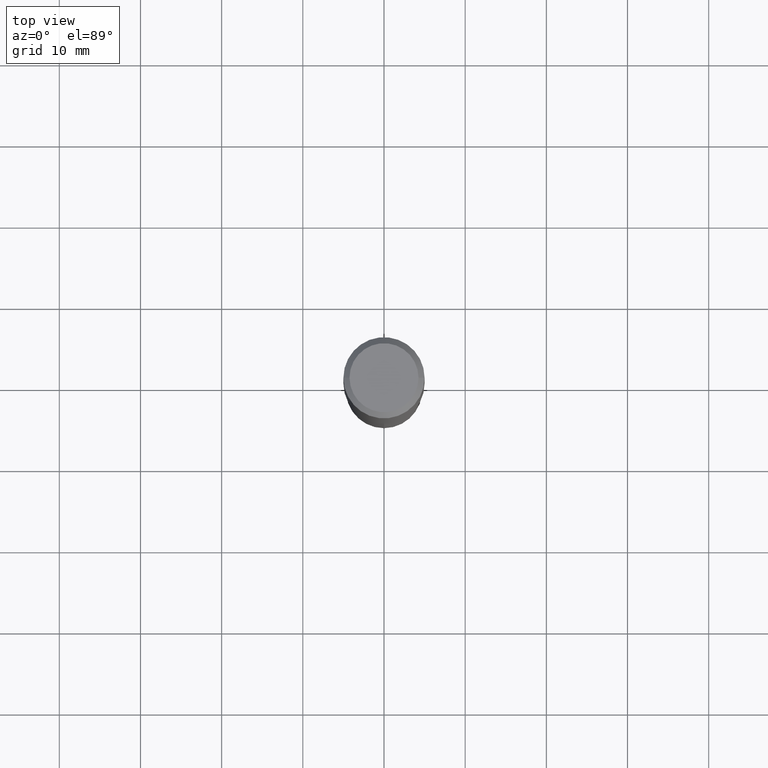
[diagram: clean part render]
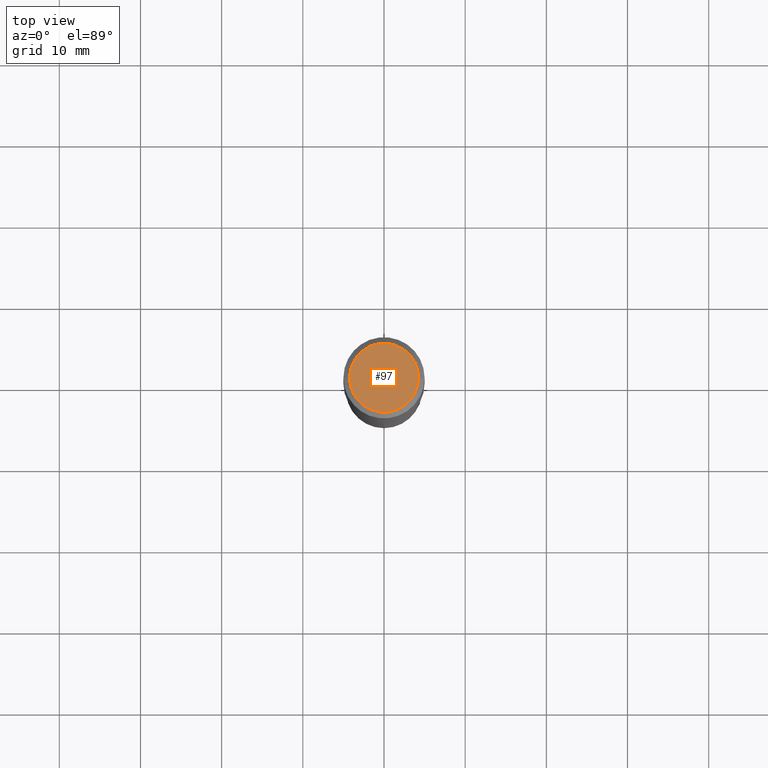
[diagram: same view with one face highlighted and labeled with its STEP entity id]
A machine part, top view. The second image highlights one B-rep face of the part: STEP entity #97.
In plain terms, the highlighted planar face has unit normal (0, -0, -1).
Its self-contained STEP definition (entity closure, byte-faithful):
#21 = AXIS2_PLACEMENT_3D ( 'NONE', #385, #416, #32 ) ;
#25 = CARTESIAN_POINT ( 'NONE',  ( -5.008488096090108951E-47, 7.150793614331948590E-33, 2.048068690724054183E-18 ) ) ;
#32 = DIRECTION ( 'NONE',  ( 1.000000000000000000, -6.982962677686267499E-15, 4.876294436782262290E-29 ) ) ;
#46 = EDGE_LOOP ( 'NONE', ( #124, #114 ) ) ;
#82 = CARTESIAN_POINT ( 'NONE',  ( 0.1673224999999999851, -1.300749711163072594E-15, 4.096137381456741925E-18 ) ) ;
#97 = ADVANCED_FACE ( 'NONE', ( #402 ), #479, .F. ) ;
#98 = DIRECTION ( 'NONE',  ( -2.445468806185136597E-29, 3.491481338843145583E-15, 1.000000000000000000 ) ) ;
#108 = EDGE_CURVE ( 'NONE', #279, #345, #365, .T. ) ;
#114 = ORIENTED_EDGE ( 'NONE', *, *, #108, .T. ) ;
#120 = AXIS2_PLACEMENT_3D ( 'NONE', #256, #98, #333 ) ;
#124 = ORIENTED_EDGE ( 'NONE', *, *, #271, .T. ) ;
#221 = DIRECTION ( 'NONE',  ( 2.438088387897960049E-29, -3.491481338843145188E-15, -1.000000000000000000 ) ) ;
#224 = CIRCLE ( 'NONE', #21, 0.1673224999999999851 ) ;
#256 = CARTESIAN_POINT ( 'NONE',  ( -1.001697619218021790E-46, 1.430158722866389718E-32, 4.096137381448108366E-18 ) ) ;
#271 = EDGE_CURVE ( 'NONE', #345, #279, #224, .T. ) ;
#279 = VERTEX_POINT ( 'NONE', #82 ) ;
#333 = DIRECTION ( 'NONE',  ( 1.000000000000000000, -6.982962677686267499E-15, 4.876294436782262290E-29 ) ) ;
#345 = VERTEX_POINT ( 'NONE', #451 ) ;
#365 = CIRCLE ( 'NONE', #120, 0.1673224999999999851 ) ;
#371 = AXIS2_PLACEMENT_3D ( 'NONE', #25, #221, #470 ) ;
#385 = CARTESIAN_POINT ( 'NONE',  ( -1.001697619218021790E-46, 1.430158722866389718E-32, 4.096137381448108366E-18 ) ) ;
#402 = FACE_OUTER_BOUND ( 'NONE', #46, .T. ) ;
#416 = DIRECTION ( 'NONE',  ( -2.445468806185136597E-29, 3.491481338843145583E-15, 1.000000000000000000 ) ) ;
#451 = CARTESIAN_POINT ( 'NONE',  ( -0.1673224999999999851, 1.219954130253505460E-15, 4.096137381439757534E-18 ) ) ;
#470 = DIRECTION ( 'NONE',  ( -1.000000000000000000, 6.982962677686265922E-15, -4.876176775795935793E-29 ) ) ;
#479 = PLANE ( 'NONE',  #371 ) ;